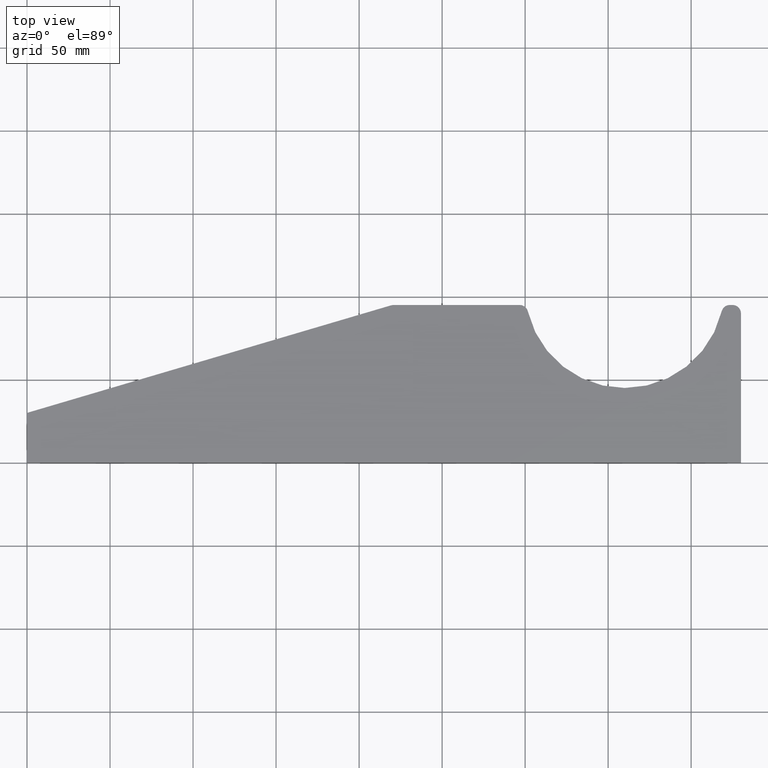
[diagram: clean part render]
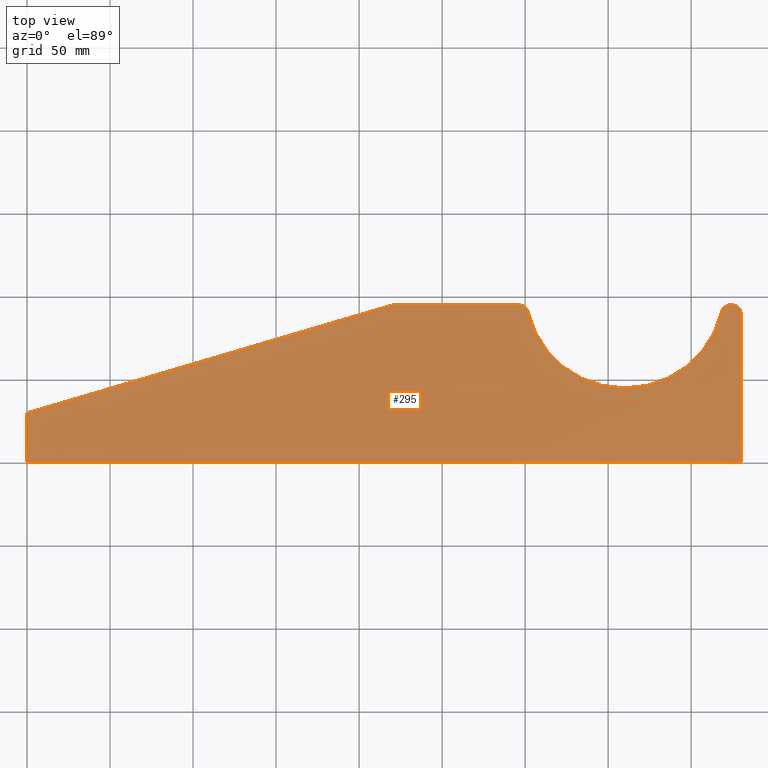
[diagram: same view with one face highlighted and labeled with its STEP entity id]
A machine part, top view. The second image highlights one B-rep face of the part: STEP entity #295.
In plain terms, the highlighted planar face has unit normal (0, 0, 1).
Its self-contained STEP definition (entity closure, byte-faithful):
#5 = CARTESIAN_POINT ( 'NONE',  ( 220.7231842260838200, 94.99999999999997200, 6.000000000000000000 ) ) ;
#17 = AXIS2_PLACEMENT_3D ( 'NONE', #357, #436, #383 ) ;
#23 = DIRECTION ( 'NONE',  ( 1.000000000000000000, 0.0000000000000000000, 0.0000000000000000000 ) ) ;
#24 = DIRECTION ( 'NONE',  ( 0.0000000000000000000, 0.0000000000000000000, 1.000000000000000000 ) ) ;
#25 = CARTESIAN_POINT ( 'NONE',  ( 423.2455532033675900, 90.00000000000000000, 6.000000000000000000 ) ) ;
#31 = CARTESIAN_POINT ( 'NONE',  ( 430.0000000000000000, 95.00000000000000000, 6.000000000000000000 ) ) ;
#34 = CARTESIAN_POINT ( 'NONE',  ( 296.7544467966324100, 94.99999999999997200, 6.000000000000000000 ) ) ;
#35 = CARTESIAN_POINT ( 'NONE',  ( 425.0000000000000000, 95.00000000000000000, 6.000000000000000000 ) ) ;
#40 = DIRECTION ( 'NONE',  ( 1.000000000000000000, 0.0000000000000000000, 0.0000000000000000000 ) ) ;
#42 = DIRECTION ( 'NONE',  ( 0.0000000000000000000, 0.0000000000000000000, 1.000000000000000000 ) ) ;
#44 = DIRECTION ( 'NONE',  ( -1.000000000000000000, 1.280332960990416700E-015, 0.0000000000000000000 ) ) ;
#47 = CARTESIAN_POINT ( 'NONE',  ( 425.0000000000000000, 90.00000000000000000, 6.000000000000000000 ) ) ;
#55 = CARTESIAN_POINT ( 'NONE',  ( 1.224646799147353700E-015, 30.00000000000000000, 6.000000000000000000 ) ) ;
#58 = CARTESIAN_POINT ( 'NONE',  ( 430.0000000000000000, 0.0000000000000000000, 6.000000000000000000 ) ) ;
#64 = ORIENTED_EDGE ( 'NONE', *, *, #172, .T. ) ;
#92 = DIRECTION ( 'NONE',  ( 1.000000000000000000, 0.0000000000000000000, 0.0000000000000000000 ) ) ;
#96 = DIRECTION ( 'NONE',  ( 0.0000000000000000000, 0.0000000000000000000, 1.000000000000000000 ) ) ;
#97 = EDGE_CURVE ( 'NONE', #315, #361, #438, .T. ) ;
#98 = CARTESIAN_POINT ( 'NONE',  ( 220.7231842260838200, 89.99999999999997200, 6.000000000000000000 ) ) ;
#101 = EDGE_CURVE ( 'NONE', #186, #315, #397, .T. ) ;
#102 = CARTESIAN_POINT ( 'NONE',  ( 0.0000000000000000000, 0.0000000000000000000, 6.000000000000000000 ) ) ;
#120 = VERTEX_POINT ( 'NONE', #204 ) ;
#136 = ORIENTED_EDGE ( 'NONE', *, *, #142, .T. ) ;
#142 = EDGE_CURVE ( 'NONE', #336, #179, #260, .T. ) ;
#152 = DIRECTION ( 'NONE',  ( 1.000000000000000000, 0.0000000000000000000, -0.0000000000000000000 ) ) ;
#153 = ORIENTED_EDGE ( 'NONE', *, *, #326, .T. ) ;
#156 = DIRECTION ( 'NONE',  ( 0.0000000000000000000, 0.0000000000000000000, 1.000000000000000000 ) ) ;
#159 = PLANE ( 'NONE',  #330 ) ;
#167 = CIRCLE ( 'NONE', #17, 5.000000000000004400 ) ;
#172 = EDGE_CURVE ( 'NONE', #120, #284, #250, .T. ) ;
#174 = CIRCLE ( 'NONE', #412, 5.000000000000004400 ) ;
#178 = AXIS2_PLACEMENT_3D ( 'NONE', #390, #389, #387 ) ;
#179 = VERTEX_POINT ( 'NONE', #379 ) ;
#186 = VERTEX_POINT ( 'NONE', #351 ) ;
#190 = CIRCLE ( 'NONE', #407, 5.000000000000004400 ) ;
#201 = CIRCLE ( 'NONE', #318, 5.000000000000004400 ) ;
#202 = ORIENTED_EDGE ( 'NONE', *, *, #101, .T. ) ;
#204 = CARTESIAN_POINT ( 'NONE',  ( 418.3805106492623600, 91.15384615384617500, 6.000000000000000000 ) ) ;
#205 = CARTESIAN_POINT ( 'NONE',  ( 360.0000000000000000, 105.0000000000000000, 6.000000000000000000 ) ) ;
#208 = EDGE_CURVE ( 'NONE', #361, #215, #234, .T. ) ;
#210 = CARTESIAN_POINT ( 'NONE',  ( 219.3064535209968000, 94.79508854029447200, 6.000000000000000000 ) ) ;
#212 = CARTESIAN_POINT ( 'NONE',  ( 0.0000000000000000000, 0.0000000000000000000, 6.000000000000000000 ) ) ;
#215 = VERTEX_POINT ( 'NONE', #335 ) ;
#219 = FACE_OUTER_BOUND ( 'NONE', #232, .T. ) ;
#220 = ORIENTED_EDGE ( 'NONE', *, *, #237, .T. ) ;
#223 = VECTOR ( 'NONE', #258, 1000.000000000000000 ) ;
#230 = LINE ( 'NONE', #298, #240 ) ;
#231 = LINE ( 'NONE', #301, #223 ) ;
#232 = EDGE_LOOP ( 'NONE', ( #220, #366, #239, #202, #265, #303, #153, #136, #415, #64, #292 ) ) ;
#234 = LINE ( 'NONE', #367, #246 ) ;
#237 = EDGE_CURVE ( 'NONE', #345, #371, #230, .T. ) ;
#239 = ORIENTED_EDGE ( 'NONE', *, *, #275, .T. ) ;
#240 = VECTOR ( 'NONE', #276, 1000.000000000000000 ) ;
#242 = DIRECTION ( 'NONE',  ( -4.082155997157845700E-017, -1.000000000000000000, 0.0000000000000000000 ) ) ;
#246 = VECTOR ( 'NONE', #347, 1000.000000000000000 ) ;
#250 = CIRCLE ( 'NONE', #178, 60.00000000000000000 ) ;
#258 = DIRECTION ( 'NONE',  ( -0.9590177080589004100, -0.2833461410174023000, 0.0000000000000000000 ) ) ;
#260 = LINE ( 'NONE', #31, #269 ) ;
#265 = ORIENTED_EDGE ( 'NONE', *, *, #97, .T. ) ;
#269 = VECTOR ( 'NONE', #44, 1000.000000000000000 ) ;
#272 = CARTESIAN_POINT ( 'NONE',  ( 301.6194893507376400, 91.15384615384613200, 6.000000000000000000 ) ) ;
#275 = EDGE_CURVE ( 'NONE', #291, #186, #231, .T. ) ;
#276 = DIRECTION ( 'NONE',  ( -1.000000000000000000, 0.0000000000000000000, 0.0000000000000000000 ) ) ;
#282 = VECTOR ( 'NONE', #242, 1000.000000000000000 ) ;
#284 = VERTEX_POINT ( 'NONE', #272 ) ;
#291 = VERTEX_POINT ( 'NONE', #210 ) ;
#292 = ORIENTED_EDGE ( 'NONE', *, *, #394, .T. ) ;
#295 = ADVANCED_FACE ( 'NONE', ( #219 ), #159, .T. ) ;
#298 = CARTESIAN_POINT ( 'NONE',  ( 300.8392021690038400, 94.99999999999997200, 6.000000000000000000 ) ) ;
#301 = CARTESIAN_POINT ( 'NONE',  ( 220.0000000000000000, 94.99999999999997200, 6.000000000000000000 ) ) ;
#303 = ORIENTED_EDGE ( 'NONE', *, *, #208, .T. ) ;
#314 = EDGE_CURVE ( 'NONE', #371, #291, #201, .T. ) ;
#315 = VERTEX_POINT ( 'NONE', #102 ) ;
#318 = AXIS2_PLACEMENT_3D ( 'NONE', #98, #96, #92 ) ;
#326 = EDGE_CURVE ( 'NONE', #215, #336, #174, .T. ) ;
#330 = AXIS2_PLACEMENT_3D ( 'NONE', #205, #156, #152 ) ;
#335 = CARTESIAN_POINT ( 'NONE',  ( 430.0000000000000000, 90.00000000000000000, 6.000000000000000000 ) ) ;
#336 = VERTEX_POINT ( 'NONE', #35 ) ;
#343 = DIRECTION ( 'NONE',  ( 1.000000000000000000, 0.0000000000000000000, 0.0000000000000000000 ) ) ;
#345 = VERTEX_POINT ( 'NONE', #34 ) ;
#347 = DIRECTION ( 'NONE',  ( 0.0000000000000000000, 1.000000000000000000, 0.0000000000000000000 ) ) ;
#351 = CARTESIAN_POINT ( 'NONE',  ( 1.224646799147353700E-015, 30.00000000000000000, 6.000000000000000000 ) ) ;
#357 = CARTESIAN_POINT ( 'NONE',  ( 296.7544467966324100, 89.99999999999997200, 6.000000000000000000 ) ) ;
#359 = EDGE_CURVE ( 'NONE', #179, #120, #190, .T. ) ;
#361 = VERTEX_POINT ( 'NONE', #58 ) ;
#366 = ORIENTED_EDGE ( 'NONE', *, *, #314, .T. ) ;
#367 = CARTESIAN_POINT ( 'NONE',  ( 430.0000000000000000, 0.0000000000000000000, 6.000000000000000000 ) ) ;
#371 = VERTEX_POINT ( 'NONE', #5 ) ;
#379 = CARTESIAN_POINT ( 'NONE',  ( 423.2455532033675900, 95.00000000000001400, 6.000000000000000000 ) ) ;
#383 = DIRECTION ( 'NONE',  ( 1.000000000000000000, 0.0000000000000000000, 0.0000000000000000000 ) ) ;
#387 = DIRECTION ( 'NONE',  ( 1.000000000000000000, 0.0000000000000000000, 0.0000000000000000000 ) ) ;
#388 = VECTOR ( 'NONE', #343, 1000.000000000000000 ) ;
#389 = DIRECTION ( 'NONE',  ( -0.0000000000000000000, -0.0000000000000000000, -1.000000000000000000 ) ) ;
#390 = CARTESIAN_POINT ( 'NONE',  ( 360.0000000000000000, 105.0000000000000000, 6.000000000000000000 ) ) ;
#394 = EDGE_CURVE ( 'NONE', #284, #345, #167, .T. ) ;
#397 = LINE ( 'NONE', #55, #282 ) ;
#407 = AXIS2_PLACEMENT_3D ( 'NONE', #25, #24, #23 ) ;
#412 = AXIS2_PLACEMENT_3D ( 'NONE', #47, #42, #40 ) ;
#415 = ORIENTED_EDGE ( 'NONE', *, *, #359, .T. ) ;
#436 = DIRECTION ( 'NONE',  ( 0.0000000000000000000, 0.0000000000000000000, 1.000000000000000000 ) ) ;
#438 = LINE ( 'NONE', #212, #388 ) ;